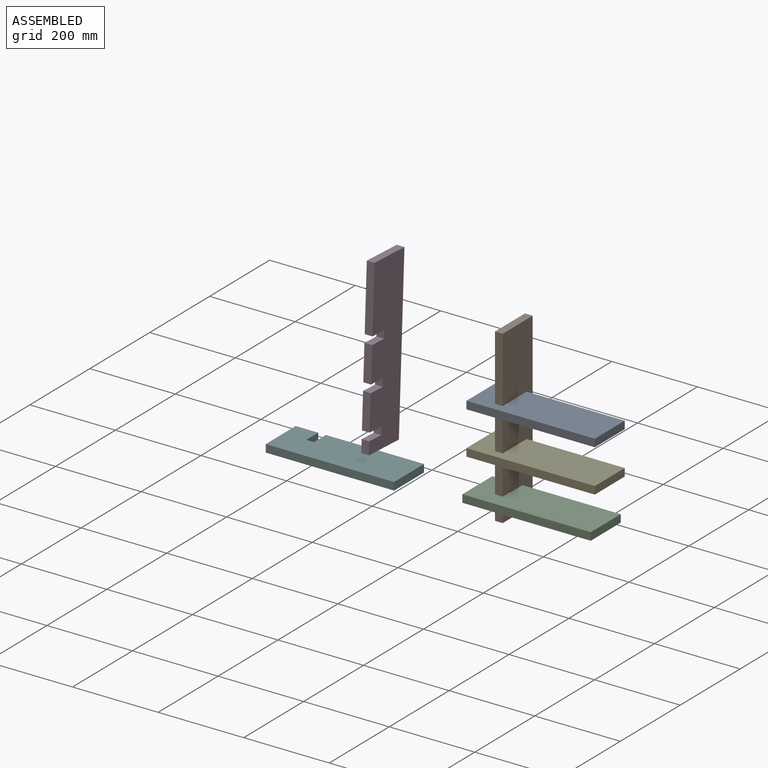
[diagram: assembled view]
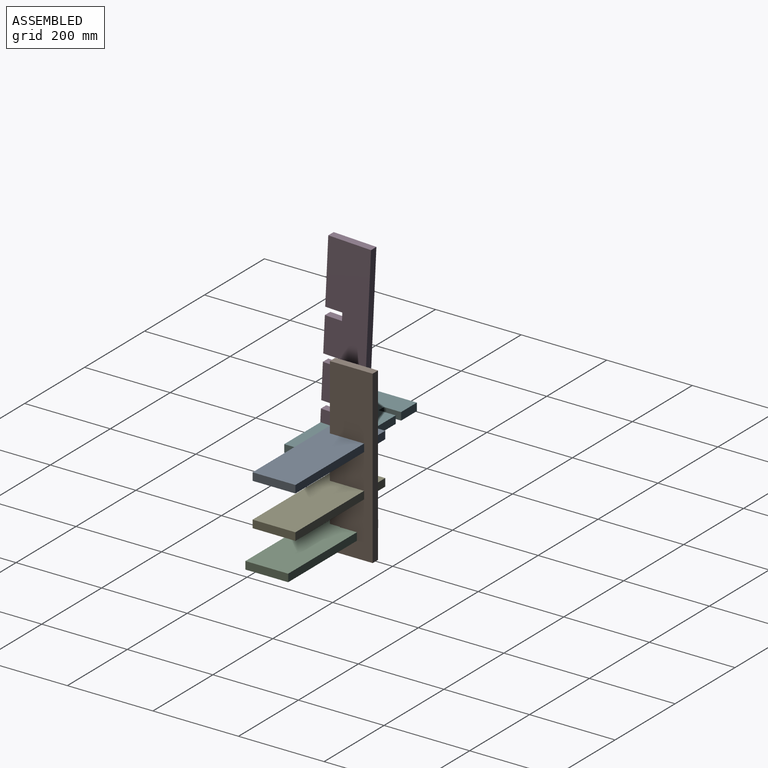
[diagram: assembled view, second angle]
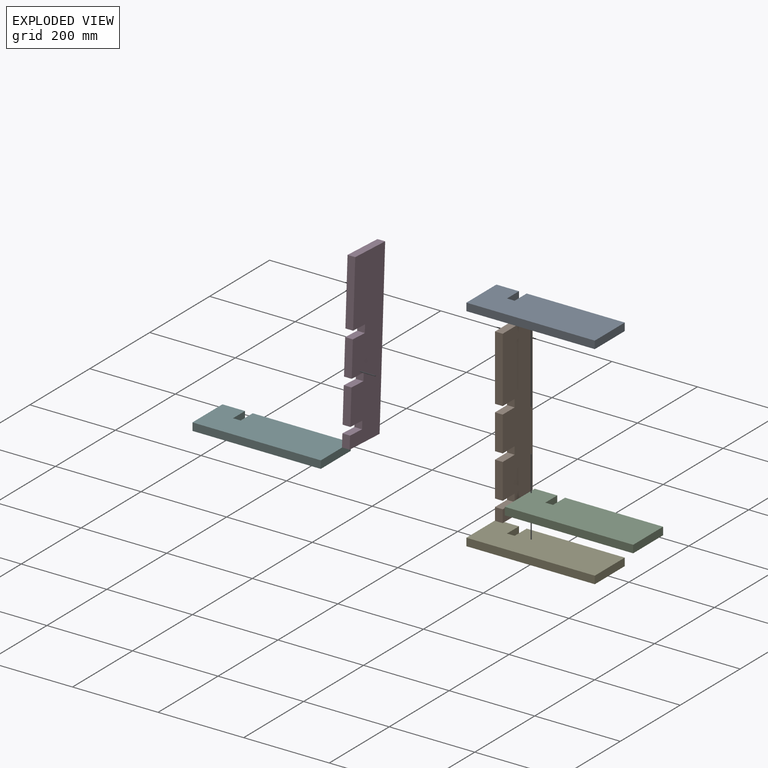
[diagram: exploded view]
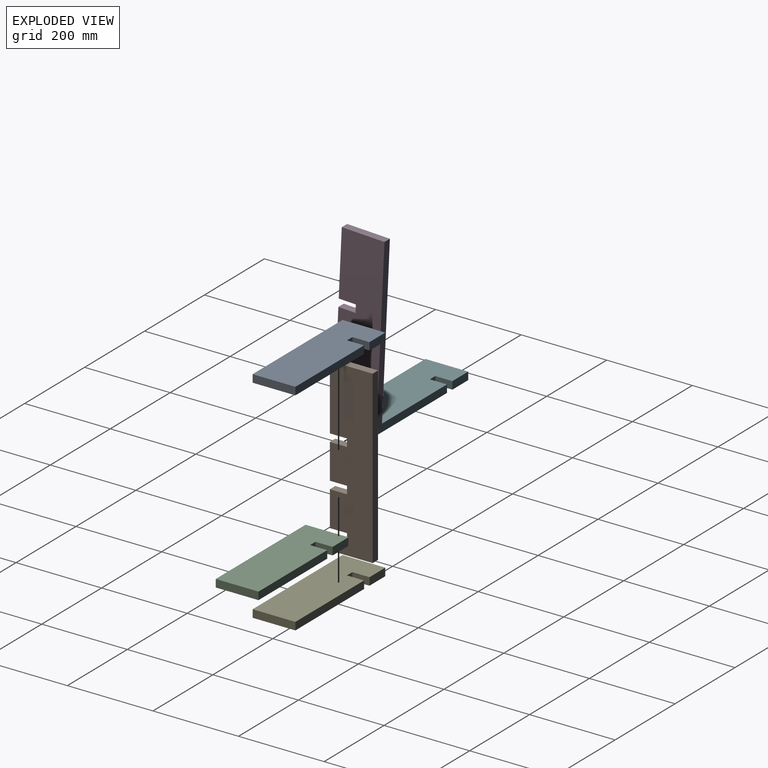
[diagram: exploded view, second angle]
ASSEMBLY  parts=6 mates=2
PART A: 10 faces, bbox 300x100x18 mm
  f0: plane 52.73x18mm, normal (0,1,0), area 949.1mm2, adj f1,f2,f3,f7
  f1: plane 300x100mm, normal (0,0,1), area 29280mm2, adj f0,f2,f4,f5,f6,f7,f8,f9
  f2: plane 100x18mm, normal (-1,0,0), area 1800mm2, adj f0,f1,f3,f5
  f3: plane 300x100mm, normal (0,0,-1), area 29280mm2, adj f0,f2,f4,f5,f6,f7,f8,f9
  f4: plane 100x18mm, normal (1,0,0), area 1800mm2, adj f1,f3,f5,f6
  f5: plane 300x18mm, normal (0,-1,0), area 5400mm2, adj f1,f2,f3,f4
  f6: plane 229.27x18mm, normal (0,1,0), area 4126.9mm2, adj f1,f3,f4,f9
  f7: plane 40x18mm, normal (1,0,0), area 720mm2, adj f0,f1,f3,f8
  f8: plane 18x18mm, normal (0,1,0), area 324mm2, adj f1,f3,f7,f9
  f9: plane 40x18mm, normal (-1,0,0), area 720mm2, adj f1,f3,f6,f8
PART B: 18 faces, bbox 400x100x18 mm
  f0: plane 40x18mm, normal (-1,0,0), area 720mm2, adj f1,f15,f16,f17
  f1: plane 152.79x18mm, normal (0,-1,0), area 2750.2mm2, adj f0,f2,f16,f17
  f2: plane 100x18mm, normal (1,0,0), area 1800mm2, adj f1,f3,f16,f17
  f3: plane 400x18mm, normal (0,1,0), area 7200mm2, adj f2,f4,f16,f17
  f4: plane 100x18mm, normal (-1,0,0), area 1800mm2, adj f3,f5,f16,f17
  f5: plane 29.21x18mm, normal (0,-1,0), area 525.8mm2, adj f4,f6,f16,f17
  f6: plane 40x18mm, normal (1,0,0), area 720mm2, adj f5,f7,f16,f17
  f7: plane 18x18mm, normal (0,-1,0), area 324mm2, adj f6,f8,f16,f17
  f8: plane 40x18mm, normal (-1,0,0), area 720mm2, adj f7,f9,f16,f17
  f9: plane 82x18mm, normal (0,-1,0), area 1476mm2, adj f8,f10,f16,f17
  f10: plane 40x18mm, normal (1,0,0), area 720mm2, adj f9,f11,f16,f17
  f11: plane 18x18mm, normal (0,-1,0), area 324mm2, adj f10,f12,f16,f17
  f12: plane 40x18mm, normal (-1,0,0), area 720mm2, adj f11,f13,f16,f17
  f13: plane 82x18mm, normal (0,-1,0), area 1476mm2, adj f12,f14,f16,f17
  f14: plane 40x18mm, normal (1,0,0), area 720mm2, adj f13,f15,f16,f17
  f15: plane 18x18mm, normal (0,-1,0), area 324mm2, adj f0,f14,f16,f17
  f16: plane 400x100mm, normal (0,0,1), area 37840mm2, adj f0,f1,f2,f3,f4,f5,f6,f7
  f17: plane 400x100mm, normal (0,0,-1), area 37840mm2, adj f0,f1,f2,f3,f4,f5,f6,f7
PART C: same geometry as A
PART D: same geometry as B
PART E: same geometry as A
PART F: same geometry as A
PLACE A t=(82.27,30.99,120.03)mm
PLACE B rot(axis=(0,-1,0),90deg) t=(-60.57,6.74,190.63)mm
PLACE C t=(83.79,15.25,-71.02)mm
PLACE D rot(axis=(-0.02,-1,0.02),90deg) t=(-259.81,-140.85,339.3)mm
PLACE E t=(82.27,30.99,20.03)mm
PLACE F t=(-267.2,-139.83,0.32)mm
MATE fastened E.f1 <-> B.f12  axis (0,0,1) through (-60.57,-9.01,30.41)mm
MATE fastened A.f1 <-> B.f0  axis (0,0,1) through (-60.57,-9.01,130.41)mm
